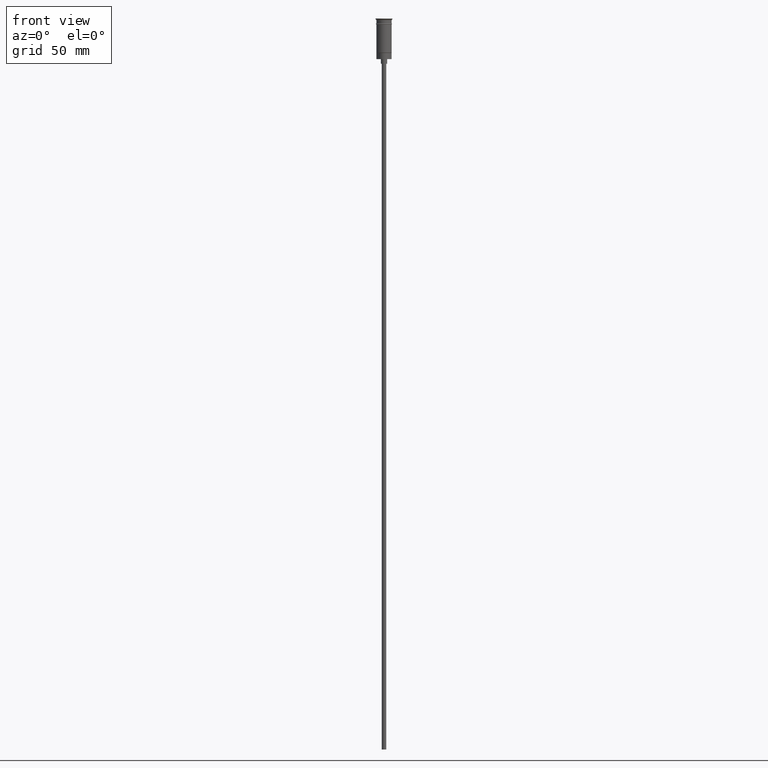
[diagram: clean part render]
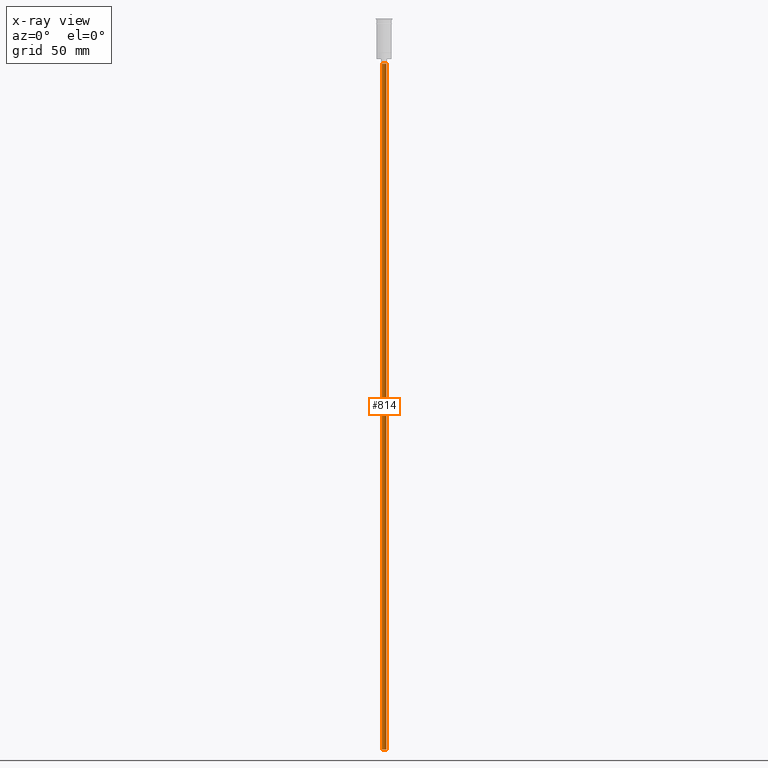
[diagram: x-ray — body ghosted, one internal face saturated and labeled with its STEP entity id]
A machine part, front view, then the same camera in x-ray: the body is ghosted and one INTERNAL B-rep face — a face not visible from any outside direction — is saturated and labeled: STEP entity #814.
In plain terms, the highlighted cylindrical surface (edge-blend (fillet) strip) has radius 1.5 mm, axis along (-0, -0, 1).
Its self-contained STEP definition (entity closure, byte-faithful):
#46 = CARTESIAN_POINT ( 'NONE',  ( -1.500000000000000222, 1.836970198721030181E-16, -476.5000000000000568 ) ) ;
#169 = VECTOR ( 'NONE', #667, 1000.000000000000000 ) ;
#198 = DIRECTION ( 'NONE',  ( -0.000000000000000000, -0.000000000000000000, 1.000000000000000000 ) ) ;
#207 = EDGE_LOOP ( 'NONE', ( #1236, #810, #1347, #1013 ) ) ;
#279 = AXIS2_PLACEMENT_3D ( 'NONE', #1166, #1152, #424 ) ;
#358 = VERTEX_POINT ( 'NONE', #664 ) ;
#381 = CARTESIAN_POINT ( 'NONE',  ( 1.500000000000000222, 0.000000000000000000, -476.5000000000000568 ) ) ;
#424 = DIRECTION ( 'NONE',  ( 1.000000000000000000, 0.000000000000000000, 0.000000000000000000 ) ) ;
#428 = DIRECTION ( 'NONE',  ( 0.000000000000000000, 0.000000000000000000, -1.000000000000000000 ) ) ;
#432 = CARTESIAN_POINT ( 'NONE',  ( 1.500000000000000222, 0.000000000000000000, -476.5000000000000568 ) ) ;
#466 = VERTEX_POINT ( 'NONE', #46 ) ;
#471 = AXIS2_PLACEMENT_3D ( 'NONE', #1440, #836, #1435 ) ;
#528 = DIRECTION ( 'NONE',  ( -1.000000000000000000, 0.000000000000000000, 0.000000000000000000 ) ) ;
#611 = CIRCLE ( 'NONE', #471, 1.500000000000000222 ) ;
#664 = CARTESIAN_POINT ( 'NONE',  ( -1.500000000000000222, 1.836970198721030181E-16, -29.50000000000000000 ) ) ;
#667 = DIRECTION ( 'NONE',  ( -0.000000000000000000, -0.000000000000000000, 1.000000000000000000 ) ) ;
#696 = VERTEX_POINT ( 'NONE', #740 ) ;
#712 = VERTEX_POINT ( 'NONE', #381 ) ;
#740 = CARTESIAN_POINT ( 'NONE',  ( 1.500000000000000222, 0.000000000000000000, -29.50000000000000000 ) ) ;
#810 = ORIENTED_EDGE ( 'NONE', *, *, #1336, .T. ) ;
#814 = ADVANCED_FACE ( 'NONE', ( #1270 ), #1517, .T. ) ;
#836 = DIRECTION ( 'NONE',  ( 0.000000000000000000, 0.000000000000000000, -1.000000000000000000 ) ) ;
#869 = AXIS2_PLACEMENT_3D ( 'NONE', #905, #428, #528 ) ;
#880 = EDGE_CURVE ( 'NONE', #712, #696, #1537, .T. ) ;
#905 = CARTESIAN_POINT ( 'NONE',  ( 0.000000000000000000, 0.000000000000000000, -29.50000000000000000 ) ) ;
#1005 = EDGE_CURVE ( 'NONE', #466, #712, #611, .T. ) ;
#1013 = ORIENTED_EDGE ( 'NONE', *, *, #880, .F. ) ;
#1042 = VECTOR ( 'NONE', #198, 1000.000000000000000 ) ;
#1144 = CIRCLE ( 'NONE', #869, 1.500000000000000222 ) ;
#1152 = DIRECTION ( 'NONE',  ( -0.000000000000000000, -0.000000000000000000, 1.000000000000000000 ) ) ;
#1166 = CARTESIAN_POINT ( 'NONE',  ( 0.000000000000000000, 0.000000000000000000, -476.5000000000000568 ) ) ;
#1236 = ORIENTED_EDGE ( 'NONE', *, *, #1005, .F. ) ;
#1264 = LINE ( 'NONE', #1414, #169 ) ;
#1270 = FACE_OUTER_BOUND ( 'NONE', #207, .T. ) ;
#1301 = EDGE_CURVE ( 'NONE', #358, #696, #1144, .T. ) ;
#1336 = EDGE_CURVE ( 'NONE', #466, #358, #1264, .T. ) ;
#1347 = ORIENTED_EDGE ( 'NONE', *, *, #1301, .T. ) ;
#1414 = CARTESIAN_POINT ( 'NONE',  ( -1.500000000000000222, 1.836970198721030181E-16, -476.5000000000000568 ) ) ;
#1435 = DIRECTION ( 'NONE',  ( -1.000000000000000000, 0.000000000000000000, 0.000000000000000000 ) ) ;
#1440 = CARTESIAN_POINT ( 'NONE',  ( 0.000000000000000000, 0.000000000000000000, -476.5000000000000568 ) ) ;
#1517 = CYLINDRICAL_SURFACE ( 'NONE', #279, 1.500000000000000222 ) ;
#1537 = LINE ( 'NONE', #432, #1042 ) ;